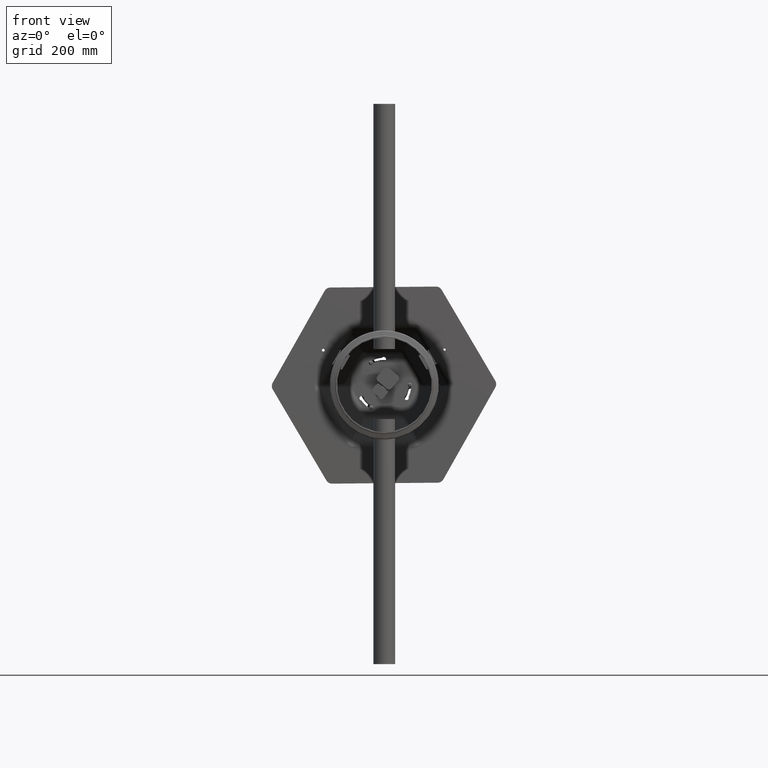
[diagram: clean part render]
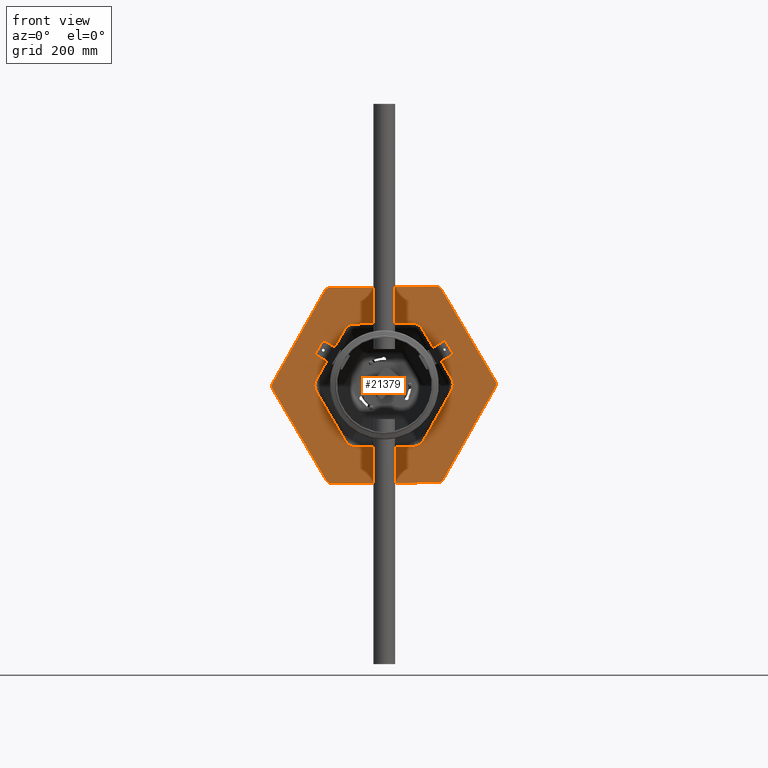
[diagram: same view with one face highlighted and labeled with its STEP entity id]
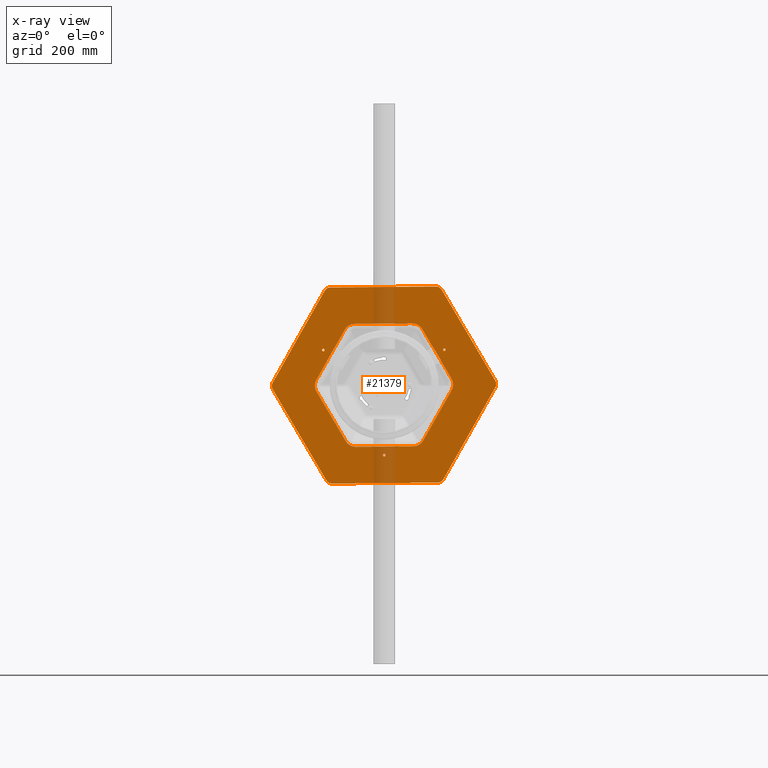
[diagram: x-ray of the same camera — body ghosted, the highlighted face saturated]
A machine part, front view. The second image highlights one B-rep face of the part: STEP entity #21379.
The next image is the same camera in x-ray: the body ghosted, the highlighted face saturated — about 8% of this face is hidden behind the body in this view.
In plain terms, the highlighted planar face has unit normal (-0, 1, 0).
Its self-contained STEP definition (entity closure, byte-faithful):
#544 = CIRCLE ( 'NONE', #22040, 12.00000000000001100 ) ;
#644 = CARTESIAN_POINT ( 'NONE',  ( 64.49258023428306800, -110.8974878807649700, -0.0000000000000000000 ) ) ;
#718 = ORIENTED_EDGE ( 'NONE', *, *, #17253, .T. ) ;
#799 = DIRECTION ( 'NONE',  ( -1.000000000000000000, 0.0000000000000000000, 0.0000000000000000000 ) ) ;
#1503 = AXIS2_PLACEMENT_3D ( 'NONE', #34766, #13506, #38342 ) ;
#1542 = CARTESIAN_POINT ( 'NONE',  ( 102.2335756172568500, -71.23590584283071800, 0.0000000000000000000 ) ) ;
#1692 = DIRECTION ( 'NONE',  ( 1.000000000000000000, -2.312964634635742700E-015, 0.0000000000000000000 ) ) ;
#1972 = CARTESIAN_POINT ( 'NONE',  ( -168.0000000000000000, 96.99484522385709800, 0.0000000000000000000 ) ) ;
#2087 = CIRCLE ( 'NONE', #14663, 2.499999999999919200 ) ;
#2155 = AXIS2_PLACEMENT_3D ( 'NONE', #33119, #11826, #36696 ) ;
#2382 = DIRECTION ( 'NONE',  ( 0.8660254037844386000, 0.5000000000000001100, 0.0000000000000000000 ) ) ;
#2645 = EDGE_CURVE ( 'NONE', #36406, #25604, #21508, .T. ) ;
#2886 = CARTESIAN_POINT ( 'NONE',  ( -108.9685932156029800, -67.34744161942873600, 0.0000000000000000000 ) ) ;
#2960 = DIRECTION ( 'NONE',  ( -1.000000000000000000, 0.0000000000000000000, 0.0000000000000000000 ) ) ;
#2998 = DIRECTION ( 'NONE',  ( 0.0000000000000000000, 0.0000000000000000000, -1.000000000000000000 ) ) ;
#3009 = VERTEX_POINT ( 'NONE', #38534 ) ;
#3015 = LINE ( 'NONE', #44417, #11600 ) ;
#3069 = CARTESIAN_POINT ( 'NONE',  ( -112.8088919301161500, 60.69584912965056100, 0.0000000000000000000 ) ) ;
#3100 = CARTESIAN_POINT ( 'NONE',  ( 10.57531631285927500, 124.1548265256771900, 0.0000000000000000000 ) ) ;
#3130 = CARTESIAN_POINT ( 'NONE',  ( -128.5606159927932900, -0.9905632959438803700, 0.0000000000000000000 ) ) ;
#3380 = ORIENTED_EDGE ( 'NONE', *, *, #31519, .T. ) ;
#3595 = VERTEX_POINT ( 'NONE', #7124 ) ;
#3862 = ORIENTED_EDGE ( 'NONE', *, *, #34755, .T. ) ;
#3939 = EDGE_CURVE ( 'NONE', #25535, #15052, #39083, .T. ) ;
#4289 = DIRECTION ( 'NONE',  ( -1.000000000000000000, 0.0000000000000000000, 0.0000000000000000000 ) ) ;
#4292 = CIRCLE ( 'NONE', #11159, 12.00000000000001100 ) ;
#4445 = EDGE_CURVE ( 'NONE', #41623, #34078, #21328, .T. ) ;
#4639 = CARTESIAN_POINT ( 'NONE',  ( 10.57531631285921500, -124.1548265256772100, 0.0000000000000000000 ) ) ;
#4654 = CARTESIAN_POINT ( 'NONE',  ( 3.840298714513109300, -128.0432907490792300, 0.0000000000000000000 ) ) ;
#4854 = CARTESIAN_POINT ( 'NONE',  ( -3.840298714513123500, -128.0432907490792300, 0.0000000000000000000 ) ) ;
#4908 = CARTESIAN_POINT ( 'NONE',  ( 168.0000000000000300, -96.99484522385709800, 0.0000000000000000000 ) ) ;
#4912 = CARTESIAN_POINT ( 'NONE',  ( 102.2335756172567500, 71.23590584283083200, 0.0000000000000000000 ) ) ;
#5007 = CARTESIAN_POINT ( 'NONE',  ( -10.57531631285923400, -124.1548265256772200, 0.0000000000000000000 ) ) ;
#5014 = EDGE_CURVE ( 'NONE', #27497, #19080, #2087, .T. ) ;
#5057 = CARTESIAN_POINT ( 'NONE',  ( 112.8088919301159800, 52.91892068284668900, 0.0000000000000000000 ) ) ;
#5425 = EDGE_CURVE ( 'NONE', #5549, #29037, #22460, .T. ) ;
#5427 = CIRCLE ( 'NONE', #1503, 12.00000000000001100 ) ;
#5431 = ORIENTED_EDGE ( 'NONE', *, *, #2645, .T. ) ;
#5437 = CARTESIAN_POINT ( 'NONE',  ( 102.2335756172568500, -71.23590584283071800, 0.0000000000000000000 ) ) ;
#5549 = VERTEX_POINT ( 'NONE', #16281 ) ;
#5579 = DIRECTION ( 'NONE',  ( 1.000000000000000000, 0.0000000000000000000, 0.0000000000000000000 ) ) ;
#5904 = DIRECTION ( 'NONE',  ( 1.000000000000000000, 4.625929269271485300E-015, 0.0000000000000000000 ) ) ;
#5939 = VECTOR ( 'NONE', #44584, 1000.000000000000000 ) ;
#5942 = DIRECTION ( 'NONE',  ( -0.0000000000000000000, -0.0000000000000000000, -1.000000000000000000 ) ) ;
#6048 = CARTESIAN_POINT ( 'NONE',  ( 7.806255641895631900E-015, 193.9896904477142500, 0.0000000000000000000 ) ) ;
#6119 = VERTEX_POINT ( 'NONE', #44460 ) ;
#6350 = EDGE_CURVE ( 'NONE', #22124, #34432, #38063, .T. ) ;
#6378 = DIRECTION ( 'NONE',  ( 0.0000000000000000000, 0.0000000000000000000, -1.000000000000000000 ) ) ;
#7124 = CARTESIAN_POINT ( 'NONE',  ( -180.0000000000000300, 96.99484522385709800, 0.0000000000000000000 ) ) ;
#7499 = FACE_BOUND ( 'NONE', #37391, .T. ) ;
#7507 = VECTOR ( 'NONE', #20666, 1000.000000000000100 ) ;
#8295 = CIRCLE ( 'NONE', #12043, 2.500000000000023100 ) ;
#8591 = DIRECTION ( 'NONE',  ( 1.000000000000000000, 0.0000000000000000000, 0.0000000000000000000 ) ) ;
#8765 = ORIENTED_EDGE ( 'NONE', *, *, #6350, .T. ) ;
#8830 = CARTESIAN_POINT ( 'NONE',  ( 174.0000000000000600, -107.3871500692703300, 0.0000000000000000000 ) ) ;
#8836 = CARTESIAN_POINT ( 'NONE',  ( 6.000000000000032900, 204.3819952931275200, 0.0000000000000000000 ) ) ;
#8941 = AXIS2_PLACEMENT_3D ( 'NONE', #41900, #20682, #45444 ) ;
#9115 = CARTESIAN_POINT ( 'NONE',  ( 180.0000000000000600, -96.99484522385709800, 0.0000000000000000000 ) ) ;
#9278 = CARTESIAN_POINT ( 'NONE',  ( 112.8088919301161000, -60.69584912965054000, 0.0000000000000000000 ) ) ;
#9368 = CARTESIAN_POINT ( 'NONE',  ( -131.0606159927932000, -0.9905632959438803700, 0.0000000000000000000 ) ) ;
#9679 = CARTESIAN_POINT ( 'NONE',  ( 180.0000000000000600, 103.9230484541326100, 0.0000000000000000000 ) ) ;
#9779 = FACE_BOUND ( 'NONE', #44138, .T. ) ;
#9824 = EDGE_CURVE ( 'NONE', #25071, #16051, #4292, .T. ) ;
#10092 = CARTESIAN_POINT ( 'NONE',  ( -10.57531631285922200, 124.1548265256771900, 0.0000000000000000000 ) ) ;
#10950 = CARTESIAN_POINT ( 'NONE',  ( -112.8088919301161000, -52.91892068284656900, 0.0000000000000000000 ) ) ;
#11125 = ORIENTED_EDGE ( 'NONE', *, *, #30082, .T. ) ;
#11159 = AXIS2_PLACEMENT_3D ( 'NONE', #24156, #24130, #24018 ) ;
#11251 = ORIENTED_EDGE ( 'NONE', *, *, #41041, .F. ) ;
#11371 = LINE ( 'NONE', #13136, #38624 ) ;
#11520 = CIRCLE ( 'NONE', #14753, 2.499999999999919200 ) ;
#11600 = VECTOR ( 'NONE', #19639, 1000.000000000000000 ) ;
#11695 = VERTEX_POINT ( 'NONE', #32139 ) ;
#11826 = DIRECTION ( 'NONE',  ( 0.0000000000000000000, 0.0000000000000000000, 1.000000000000000000 ) ) ;
#11870 =( BOUNDED_CURVE ( )  B_SPLINE_CURVE ( 3, ( #36992, #33437, #26524, #4912 ),
 .UNSPECIFIED., .F., .T. ) 
 B_SPLINE_CURVE_WITH_KNOTS ( ( 4, 4 ),
 ( 2.640144173555559500, 3.643041133624023200 ),
 .UNSPECIFIED. ) 
 CURVE ( )  GEOMETRIC_REPRESENTATION_ITEM ( )  RATIONAL_B_SPLINE_CURVE ( ( 1.000000000000000000, 0.9179248021248425100, 0.9179248021248425100, 1.000000000000000000 ) ) 
 REPRESENTATION_ITEM ( '' )  );
#12043 = AXIS2_PLACEMENT_3D ( 'NONE', #27937, #6378, #31465 ) ;
#12168 = EDGE_CURVE ( 'NONE', #25071, #29953, #36006, .T. ) ;
#13002 = EDGE_LOOP ( 'NONE', ( #46392, #41480, #17157, #11125, #14308, #34524, #33927, #43144, #43873, #21026, #33277, #3862 ) ) ;
#13025 = DIRECTION ( 'NONE',  ( -0.8660254037844388200, 0.4999999999999996700, -0.0000000000000000000 ) ) ;
#13136 = CARTESIAN_POINT ( 'NONE',  ( 56.40444596505804500, 97.69536618425398400, 0.0000000000000000000 ) ) ;
#13144 = LINE ( 'NONE', #19116, #21575 ) ;
#13189 = ORIENTED_EDGE ( 'NONE', *, *, #23596, .T. ) ;
#13506 = DIRECTION ( 'NONE',  ( -0.0000000000000000000, -0.0000000000000000000, -1.000000000000000000 ) ) ;
#13753 = CARTESIAN_POINT ( 'NONE',  ( 61.19974159824982300, 111.8859771665176800, 0.0000000000000000000 ) ) ;
#13816 = VERTEX_POINT ( 'NONE', #46049 ) ;
#14244 = EDGE_CURVE ( 'NONE', #13816, #22124, #11371, .T. ) ;
#14271 = VERTEX_POINT ( 'NONE', #8836 ) ;
#14294 = LINE ( 'NONE', #15686, #33169 ) ;
#14308 = ORIENTED_EDGE ( 'NONE', *, *, #44895, .F. ) ;
#14663 = AXIS2_PLACEMENT_3D ( 'NONE', #3130, #2998, #2960 ) ;
#14753 = AXIS2_PLACEMENT_3D ( 'NONE', #43621, #22501, #799 ) ;
#15052 = VERTEX_POINT ( 'NONE', #13753 ) ;
#15157 = EDGE_CURVE ( 'NONE', #5549, #14271, #41954, .T. ) ;
#15686 = CARTESIAN_POINT ( 'NONE',  ( -112.8088919301161300, -5.343036696401209200E-014, 0.0000000000000000000 ) ) ;
#15930 =( BOUNDED_CURVE ( )  B_SPLINE_CURVE ( 3, ( #38508, #43363, #2886, #18830 ),
 .UNSPECIFIED., .F., .T. ) 
 B_SPLINE_CURVE_WITH_KNOTS ( ( 4, 4 ),
 ( 2.640144173555559500, 3.643041133624025800 ),
 .UNSPECIFIED. ) 
 CURVE ( )  GEOMETRIC_REPRESENTATION_ITEM ( )  RATIONAL_B_SPLINE_CURVE ( ( 1.000000000000000000, 0.9179248021248422900, 0.9179248021248422900, 1.000000000000000000 ) ) 
 REPRESENTATION_ITEM ( '' )  );
#16051 = VERTEX_POINT ( 'NONE', #33627 ) ;
#16281 = CARTESIAN_POINT ( 'NONE',  ( -6.000000000000008900, 204.3819952931275200, 0.0000000000000000000 ) ) ;
#17157 = ORIENTED_EDGE ( 'NONE', *, *, #39781, .F. ) ;
#17227 = VERTEX_POINT ( 'NONE', #5057 ) ;
#17253 = EDGE_CURVE ( 'NONE', #22568, #36406, #27632, .T. ) ;
#17524 = EDGE_CURVE ( 'NONE', #31875, #11695, #15930, .T. ) ;
#17892 = ORIENTED_EDGE ( 'NONE', *, *, #21457, .T. ) ;
#17995 = CARTESIAN_POINT ( 'NONE',  ( 174.0000000000000600, 107.3871500692703600, 0.0000000000000000000 ) ) ;
#18260 = FACE_BOUND ( 'NONE', #25933, .T. ) ;
#18830 = CARTESIAN_POINT ( 'NONE',  ( -102.2335756172568500, -71.23590584283074600, 0.0000000000000000000 ) ) ;
#19026 = DIRECTION ( 'NONE',  ( -0.8660254037844388200, -0.4999999999999997200, 0.0000000000000000000 ) ) ;
#19080 = VERTEX_POINT ( 'NONE', #9368 ) ;
#19114 = ORIENTED_EDGE ( 'NONE', *, *, #17524, .T. ) ;
#19116 = CARTESIAN_POINT ( 'NONE',  ( 180.0000000000000600, -103.9230484541326000, 0.0000000000000000000 ) ) ;
#19639 = DIRECTION ( 'NONE',  ( 0.8660254037844387100, -0.4999999999999998300, -0.0000000000000000000 ) ) ;
#20382 = VECTOR ( 'NONE', #30662, 1000.000000000000000 ) ;
#20666 = DIRECTION ( 'NONE',  ( 0.8660254037844386000, -0.4999999999999999400, 0.0000000000000000000 ) ) ;
#20682 = DIRECTION ( 'NONE',  ( 0.0000000000000000000, 0.0000000000000000000, -1.000000000000000000 ) ) ;
#20720 = CARTESIAN_POINT ( 'NONE',  ( -180.0000000000000300, -103.9230484541326800, 0.0000000000000000000 ) ) ;
#20952 = VERTEX_POINT ( 'NONE', #9115 ) ;
#21026 = ORIENTED_EDGE ( 'NONE', *, *, #9824, .T. ) ;
#21328 =( BOUNDED_CURVE ( )  B_SPLINE_CURVE ( 3, ( #43438, #31986, #3069, #45480 ),
 .UNSPECIFIED., .F., .T. ) 
 B_SPLINE_CURVE_WITH_KNOTS ( ( 4, 4 ),
 ( 2.640144173555560400, 3.643041133624024900 ),
 .UNSPECIFIED. ) 
 CURVE ( )  GEOMETRIC_REPRESENTATION_ITEM ( )  RATIONAL_B_SPLINE_CURVE ( ( 1.000000000000000000, 0.9179248021248425100, 0.9179248021248425100, 1.000000000000000000 ) ) 
 REPRESENTATION_ITEM ( '' )  );
#21379 = ADVANCED_FACE ( 'NONE', ( #35997, #9779, #18260, #7499, #44318 ), #29314, .F. ) ;
#21457 = EDGE_CURVE ( 'NONE', #17227, #13816, #11870, .T. ) ;
#21508 = LINE ( 'NONE', #31256, #20382 ) ;
#21575 = VECTOR ( 'NONE', #22743, 1000.000000000000000 ) ;
#21860 = LINE ( 'NONE', #27590, #31258 ) ;
#21877 = CARTESIAN_POINT ( 'NONE',  ( -174.0000000000000300, -107.3871500692704300, 0.0000000000000000000 ) ) ;
#22040 = AXIS2_PLACEMENT_3D ( 'NONE', #1972, #27162, #5579 ) ;
#22124 = VERTEX_POINT ( 'NONE', #3100 ) ;
#22159 = CARTESIAN_POINT ( 'NONE',  ( 61.99258023428314600, -110.8974878807649700, -0.0000000000000000000 ) ) ;
#22460 = LINE ( 'NONE', #44789, #31806 ) ;
#22501 = DIRECTION ( 'NONE',  ( 0.0000000000000000000, 0.0000000000000000000, -1.000000000000000000 ) ) ;
#22503 = CARTESIAN_POINT ( 'NONE',  ( -56.40444596505804500, 97.69536618425397000, 0.0000000000000000000 ) ) ;
#22568 = VERTEX_POINT ( 'NONE', #27766 ) ;
#22743 = DIRECTION ( 'NONE',  ( 0.0000000000000000000, 1.000000000000000000, 0.0000000000000000000 ) ) ;
#23363 = DIRECTION ( 'NONE',  ( -0.0000000000000000000, -0.0000000000000000000, -1.000000000000000000 ) ) ;
#23412 = CARTESIAN_POINT ( 'NONE',  ( 112.8088919301160300, 1.068607339280240100E-013, 0.0000000000000000000 ) ) ;
#23596 = EDGE_CURVE ( 'NONE', #34432, #41623, #40235, .T. ) ;
#23606 = CARTESIAN_POINT ( 'NONE',  ( 3.840298714513156000, 128.0432907490792000, 0.0000000000000000000 ) ) ;
#24018 = DIRECTION ( 'NONE',  ( 1.000000000000000000, 2.312964634635740700E-015, 0.0000000000000000000 ) ) ;
#24130 = DIRECTION ( 'NONE',  ( -0.0000000000000000000, -0.0000000000000000000, -1.000000000000000000 ) ) ;
#24156 = CARTESIAN_POINT ( 'NONE',  ( -168.0000000000000000, -96.99484522385716900, 0.0000000000000000000 ) ) ;
#24814 = CARTESIAN_POINT ( 'NONE',  ( -180.0000000000000300, 103.9230484541325800, 0.0000000000000000000 ) ) ;
#24906 = DIRECTION ( 'NONE',  ( 0.0000000000000000000, 0.0000000000000000000, -1.000000000000000000 ) ) ;
#25071 = VERTEX_POINT ( 'NONE', #21877 ) ;
#25252 = CARTESIAN_POINT ( 'NONE',  ( -102.2335756172569000, 71.23590584283071800, 0.0000000000000000000 ) ) ;
#25342 = EDGE_CURVE ( 'NONE', #26999, #17227, #42825, .T. ) ;
#25535 = VERTEX_POINT ( 'NONE', #33366 ) ;
#25604 = VERTEX_POINT ( 'NONE', #1542 ) ;
#25610 = EDGE_CURVE ( 'NONE', #41758, #29953, #31708, .T. ) ;
#25613 = ORIENTED_EDGE ( 'NONE', *, *, #4445, .T. ) ;
#25730 = EDGE_CURVE ( 'NONE', #37151, #3009, #28431, .T. ) ;
#25827 = VERTEX_POINT ( 'NONE', #17995 ) ;
#25909 = DIRECTION ( 'NONE',  ( 0.0000000000000000000, 0.0000000000000000000, -1.000000000000000000 ) ) ;
#25933 = EDGE_LOOP ( 'NONE', ( #11251, #38006 ) ) ;
#26524 = CARTESIAN_POINT ( 'NONE',  ( 108.9685932156028400, 67.34744161942882100, 0.0000000000000000000 ) ) ;
#26644 = CARTESIAN_POINT ( 'NONE',  ( 5.999999999999984900, -204.3819952931275500, 0.0000000000000000000 ) ) ;
#26864 = ORIENTED_EDGE ( 'NONE', *, *, #25342, .T. ) ;
#26932 = AXIS2_PLACEMENT_3D ( 'NONE', #6048, #5942, #5904 ) ;
#26999 = VERTEX_POINT ( 'NONE', #29571 ) ;
#27162 = DIRECTION ( 'NONE',  ( -0.0000000000000000000, -0.0000000000000000000, -1.000000000000000000 ) ) ;
#27497 = VERTEX_POINT ( 'NONE', #44167 ) ;
#27590 = CARTESIAN_POINT ( 'NONE',  ( -3.642919299551294900E-014, -207.8460969082653100, 0.0000000000000000000 ) ) ;
#27632 =( BOUNDED_CURVE ( )  B_SPLINE_CURVE ( 3, ( #5007, #4854, #4654, #4639 ),
 .UNSPECIFIED., .F., .T. ) 
 B_SPLINE_CURVE_WITH_KNOTS ( ( 4, 4 ),
 ( 2.640144173555561300, 3.643041133624024900 ),
 .UNSPECIFIED. ) 
 CURVE ( )  GEOMETRIC_REPRESENTATION_ITEM ( )  RATIONAL_B_SPLINE_CURVE ( ( 1.000000000000000000, 0.9179248021248425100, 0.9179248021248425100, 1.000000000000000000 ) ) 
 REPRESENTATION_ITEM ( '' )  );
#27766 = CARTESIAN_POINT ( 'NONE',  ( -10.57531631285923400, -124.1548265256772200, 0.0000000000000000000 ) ) ;
#27937 = CARTESIAN_POINT ( 'NONE',  ( 63.69974159824984400, 111.8859771665176800, 0.0000000000000000000 ) ) ;
#28431 = CIRCLE ( 'NONE', #8941, 2.499999999999925800 ) ;
#28448 = ORIENTED_EDGE ( 'NONE', *, *, #34148, .T. ) ;
#29037 = VERTEX_POINT ( 'NONE', #38707 ) ;
#29264 = EDGE_CURVE ( 'NONE', #20952, #34231, #32979, .T. ) ;
#29314 = PLANE ( 'NONE',  #2155 ) ;
#29316 =( BOUNDED_CURVE ( )  B_SPLINE_CURVE ( 3, ( #5437, #44781, #9278, #34220 ),
 .UNSPECIFIED., .F., .F. ) 
 B_SPLINE_CURVE_WITH_KNOTS ( ( 4, 4 ),
 ( 2.640144173555562200, 3.643041133624028000 ),
 .UNSPECIFIED. ) 
 CURVE ( )  GEOMETRIC_REPRESENTATION_ITEM ( )  RATIONAL_B_SPLINE_CURVE ( ( 1.000000000000000000, 0.9179248021248422900, 0.9179248021248422900, 1.000000000000000000 ) ) 
 REPRESENTATION_ITEM ( '' )  );
#29571 = CARTESIAN_POINT ( 'NONE',  ( 112.8088919301160900, -52.91892068284654000, 0.0000000000000000000 ) ) ;
#29649 = CIRCLE ( 'NONE', #31542, 2.499999999999925800 ) ;
#29953 = VERTEX_POINT ( 'NONE', #31214 ) ;
#30069 = DIRECTION ( 'NONE',  ( -0.0000000000000000000, -0.0000000000000000000, -1.000000000000000000 ) ) ;
#30082 = EDGE_CURVE ( 'NONE', #25827, #6119, #5427, .T. ) ;
#30662 = DIRECTION ( 'NONE',  ( 0.8660254037844387100, 0.4999999999999998900, -0.0000000000000000000 ) ) ;
#30794 = LINE ( 'NONE', #9679, #40197 ) ;
#31117 = DIRECTION ( 'NONE',  ( -0.8660254037844386000, 0.5000000000000000000, 0.0000000000000000000 ) ) ;
#31214 = CARTESIAN_POINT ( 'NONE',  ( -6.000000000000116400, -204.3819952931275200, 0.0000000000000000000 ) ) ;
#31256 = CARTESIAN_POINT ( 'NONE',  ( 56.40444596505805900, -97.69536618425394200, 0.0000000000000000000 ) ) ;
#31258 = VECTOR ( 'NONE', #2382, 1000.000000000000000 ) ;
#31271 = EDGE_CURVE ( 'NONE', #3595, #16051, #35549, .T. ) ;
#31465 = DIRECTION ( 'NONE',  ( -1.000000000000000000, 0.0000000000000000000, 0.0000000000000000000 ) ) ;
#31519 = EDGE_CURVE ( 'NONE', #11695, #22568, #3015, .T. ) ;
#31542 = AXIS2_PLACEMENT_3D ( 'NONE', #644, #25909, #4289 ) ;
#31646 = ORIENTED_EDGE ( 'NONE', *, *, #5014, .F. ) ;
#31708 = CIRCLE ( 'NONE', #38515, 12.00000000000000000 ) ;
#31806 = VECTOR ( 'NONE', #44640, 999.9999999999998900 ) ;
#31875 = VERTEX_POINT ( 'NONE', #10950 ) ;
#31986 = CARTESIAN_POINT ( 'NONE',  ( -108.9685932156030100, 67.34744161942873600, 0.0000000000000000000 ) ) ;
#32139 = CARTESIAN_POINT ( 'NONE',  ( -102.2335756172568500, -71.23590584283074600, 0.0000000000000000000 ) ) ;
#32979 = CIRCLE ( 'NONE', #39550, 12.00000000000001100 ) ;
#33119 = CARTESIAN_POINT ( 'NONE',  ( 0.0000000000000000000, 0.0000000000000000000, 0.0000000000000000000 ) ) ;
#33169 = VECTOR ( 'NONE', #40492, 1000.000000000000000 ) ;
#33277 = ORIENTED_EDGE ( 'NONE', *, *, #31271, .F. ) ;
#33345 = CARTESIAN_POINT ( 'NONE',  ( 63.69974159824984400, 111.8859771665176800, 0.0000000000000000000 ) ) ;
#33366 = CARTESIAN_POINT ( 'NONE',  ( 66.19974159824985800, 111.8859771665176800, 0.0000000000000000000 ) ) ;
#33437 = CARTESIAN_POINT ( 'NONE',  ( 112.8088919301159800, 60.69584912965067500, 0.0000000000000000000 ) ) ;
#33515 = EDGE_CURVE ( 'NONE', #19080, #27497, #11520, .T. ) ;
#33627 = CARTESIAN_POINT ( 'NONE',  ( -180.0000000000000300, -96.99484522385709800, 0.0000000000000000000 ) ) ;
#33927 = ORIENTED_EDGE ( 'NONE', *, *, #36875, .F. ) ;
#34078 = VERTEX_POINT ( 'NONE', #36302 ) ;
#34148 = EDGE_CURVE ( 'NONE', #34078, #31875, #14294, .T. ) ;
#34220 = CARTESIAN_POINT ( 'NONE',  ( 112.8088919301160900, -52.91892068284654000, 0.0000000000000000000 ) ) ;
#34231 = VERTEX_POINT ( 'NONE', #8830 ) ;
#34432 = VERTEX_POINT ( 'NONE', #10092 ) ;
#34439 = VECTOR ( 'NONE', #39017, 1000.000000000000000 ) ;
#34524 = ORIENTED_EDGE ( 'NONE', *, *, #29264, .T. ) ;
#34755 = EDGE_CURVE ( 'NONE', #3595, #29037, #544, .T. ) ;
#34759 = EDGE_CURVE ( 'NONE', #25604, #26999, #29316, .T. ) ;
#34766 = CARTESIAN_POINT ( 'NONE',  ( 168.0000000000000300, 96.99484522385711200, 0.0000000000000000000 ) ) ;
#35549 = LINE ( 'NONE', #24814, #34439 ) ;
#35997 = FACE_BOUND ( 'NONE', #37999, .T. ) ;
#36006 = LINE ( 'NONE', #20720, #7507 ) ;
#36302 = CARTESIAN_POINT ( 'NONE',  ( -112.8088919301161600, 52.91892068284657600, 0.0000000000000000000 ) ) ;
#36406 = VERTEX_POINT ( 'NONE', #41087 ) ;
#36657 = ORIENTED_EDGE ( 'NONE', *, *, #33515, .F. ) ;
#36696 = DIRECTION ( 'NONE',  ( 1.000000000000000000, 0.0000000000000000000, -0.0000000000000000000 ) ) ;
#36741 = EDGE_CURVE ( 'NONE', #3009, #37151, #29649, .T. ) ;
#36766 = DIRECTION ( 'NONE',  ( -1.000000000000000000, 0.0000000000000000000, 0.0000000000000000000 ) ) ;
#36875 = EDGE_CURVE ( 'NONE', #41758, #34231, #21860, .T. ) ;
#36992 = CARTESIAN_POINT ( 'NONE',  ( 112.8088919301159800, 52.91892068284668900, 0.0000000000000000000 ) ) ;
#37151 = VERTEX_POINT ( 'NONE', #22159 ) ;
#37391 = EDGE_LOOP ( 'NONE', ( #3380, #718, #5431, #40821, #26864, #17892, #39612, #8765, #13189, #25613, #28448, #19114 ) ) ;
#37999 = EDGE_LOOP ( 'NONE', ( #42461, #42120 ) ) ;
#38006 = ORIENTED_EDGE ( 'NONE', *, *, #3939, .F. ) ;
#38063 =( BOUNDED_CURVE ( )  B_SPLINE_CURVE ( 3, ( #38582, #23606, #38533, #38681 ),
 .UNSPECIFIED., .F., .T. ) 
 B_SPLINE_CURVE_WITH_KNOTS ( ( 4, 4 ),
 ( 2.640144173555559500, 3.643041133624025800 ),
 .UNSPECIFIED. ) 
 CURVE ( )  GEOMETRIC_REPRESENTATION_ITEM ( )  RATIONAL_B_SPLINE_CURVE ( ( 1.000000000000000000, 0.9179248021248422900, 0.9179248021248422900, 1.000000000000000000 ) ) 
 REPRESENTATION_ITEM ( '' )  );
#38342 = DIRECTION ( 'NONE',  ( 1.000000000000000000, -1.156482317317870300E-015, 0.0000000000000000000 ) ) ;
#38508 = CARTESIAN_POINT ( 'NONE',  ( -112.8088919301161000, -52.91892068284656900, 0.0000000000000000000 ) ) ;
#38515 = AXIS2_PLACEMENT_3D ( 'NONE', #44528, #23363, #1692 ) ;
#38533 = CARTESIAN_POINT ( 'NONE',  ( -3.840298714513100900, 128.0432907490792000, 0.0000000000000000000 ) ) ;
#38534 = CARTESIAN_POINT ( 'NONE',  ( 66.99258023428301100, -110.8974878807649700, 0.0000000000000000000 ) ) ;
#38582 = CARTESIAN_POINT ( 'NONE',  ( 10.57531631285927500, 124.1548265256771900, 0.0000000000000000000 ) ) ;
#38624 = VECTOR ( 'NONE', #13025, 1000.000000000000100 ) ;
#38681 = CARTESIAN_POINT ( 'NONE',  ( -10.57531631285922200, 124.1548265256771900, 0.0000000000000000000 ) ) ;
#38707 = CARTESIAN_POINT ( 'NONE',  ( -174.0000000000000900, 107.3871500692703200, 0.0000000000000000000 ) ) ;
#39017 = DIRECTION ( 'NONE',  ( 0.0000000000000000000, -1.000000000000000000, 0.0000000000000000000 ) ) ;
#39083 = CIRCLE ( 'NONE', #40478, 2.500000000000023100 ) ;
#39126 = VECTOR ( 'NONE', #19026, 1000.000000000000000 ) ;
#39550 = AXIS2_PLACEMENT_3D ( 'NONE', #4908, #30069, #8591 ) ;
#39612 = ORIENTED_EDGE ( 'NONE', *, *, #14244, .T. ) ;
#39781 = EDGE_CURVE ( 'NONE', #25827, #14271, #30794, .T. ) ;
#40197 = VECTOR ( 'NONE', #31117, 1000.000000000000200 ) ;
#40235 = LINE ( 'NONE', #22503, #39126 ) ;
#40478 = AXIS2_PLACEMENT_3D ( 'NONE', #33345, #24906, #36766 ) ;
#40492 = DIRECTION ( 'NONE',  ( 4.736361296511237500E-016, -1.000000000000000000, -0.0000000000000000000 ) ) ;
#40821 = ORIENTED_EDGE ( 'NONE', *, *, #34759, .T. ) ;
#41041 = EDGE_CURVE ( 'NONE', #15052, #25535, #8295, .T. ) ;
#41087 = CARTESIAN_POINT ( 'NONE',  ( 10.57531631285921500, -124.1548265256772100, 0.0000000000000000000 ) ) ;
#41480 = ORIENTED_EDGE ( 'NONE', *, *, #15157, .T. ) ;
#41623 = VERTEX_POINT ( 'NONE', #25252 ) ;
#41758 = VERTEX_POINT ( 'NONE', #26644 ) ;
#41900 = CARTESIAN_POINT ( 'NONE',  ( 64.49258023428306800, -110.8974878807649700, -0.0000000000000000000 ) ) ;
#41954 = CIRCLE ( 'NONE', #26932, 12.00000000000000000 ) ;
#42120 = ORIENTED_EDGE ( 'NONE', *, *, #36741, .F. ) ;
#42461 = ORIENTED_EDGE ( 'NONE', *, *, #25730, .F. ) ;
#42825 = LINE ( 'NONE', #23412, #5939 ) ;
#43144 = ORIENTED_EDGE ( 'NONE', *, *, #25610, .T. ) ;
#43363 = CARTESIAN_POINT ( 'NONE',  ( -112.8088919301161300, -60.69584912965056800, 0.0000000000000000000 ) ) ;
#43438 = CARTESIAN_POINT ( 'NONE',  ( -102.2335756172569000, 71.23590584283071800, 0.0000000000000000000 ) ) ;
#43621 = CARTESIAN_POINT ( 'NONE',  ( -128.5606159927932900, -0.9905632959438803700, 0.0000000000000000000 ) ) ;
#43873 = ORIENTED_EDGE ( 'NONE', *, *, #12168, .F. ) ;
#44138 = EDGE_LOOP ( 'NONE', ( #36657, #31646 ) ) ;
#44167 = CARTESIAN_POINT ( 'NONE',  ( -126.0606159927933600, -0.9905632959438801500, 0.0000000000000000000 ) ) ;
#44318 = FACE_OUTER_BOUND ( 'NONE', #13002, .T. ) ;
#44417 = CARTESIAN_POINT ( 'NONE',  ( -56.40444596505805900, -97.69536618425395600, 0.0000000000000000000 ) ) ;
#44460 = CARTESIAN_POINT ( 'NONE',  ( 180.0000000000000600, 96.99484522385711200, 0.0000000000000000000 ) ) ;
#44528 = CARTESIAN_POINT ( 'NONE',  ( -1.821459649775647400E-014, -193.9896904477142800, 0.0000000000000000000 ) ) ;
#44584 = DIRECTION ( 'NONE',  ( -9.472722593022467100E-016, 1.000000000000000000, -0.0000000000000000000 ) ) ;
#44640 = DIRECTION ( 'NONE',  ( -0.8660254037844386000, -0.5000000000000002200, 0.0000000000000000000 ) ) ;
#44781 = CARTESIAN_POINT ( 'NONE',  ( 108.9685932156029400, -67.34744161942870700, 0.0000000000000000000 ) ) ;
#44789 = CARTESIAN_POINT ( 'NONE',  ( 1.040834085586084300E-014, 207.8460969082652800, 0.0000000000000000000 ) ) ;
#44895 = EDGE_CURVE ( 'NONE', #20952, #6119, #13144, .T. ) ;
#45444 = DIRECTION ( 'NONE',  ( -1.000000000000000000, 0.0000000000000000000, 0.0000000000000000000 ) ) ;
#45480 = CARTESIAN_POINT ( 'NONE',  ( -112.8088919301161600, 52.91892068284657600, 0.0000000000000000000 ) ) ;
#46049 = CARTESIAN_POINT ( 'NONE',  ( 102.2335756172567500, 71.23590584283083200, 0.0000000000000000000 ) ) ;
#46392 = ORIENTED_EDGE ( 'NONE', *, *, #5425, .F. ) ;